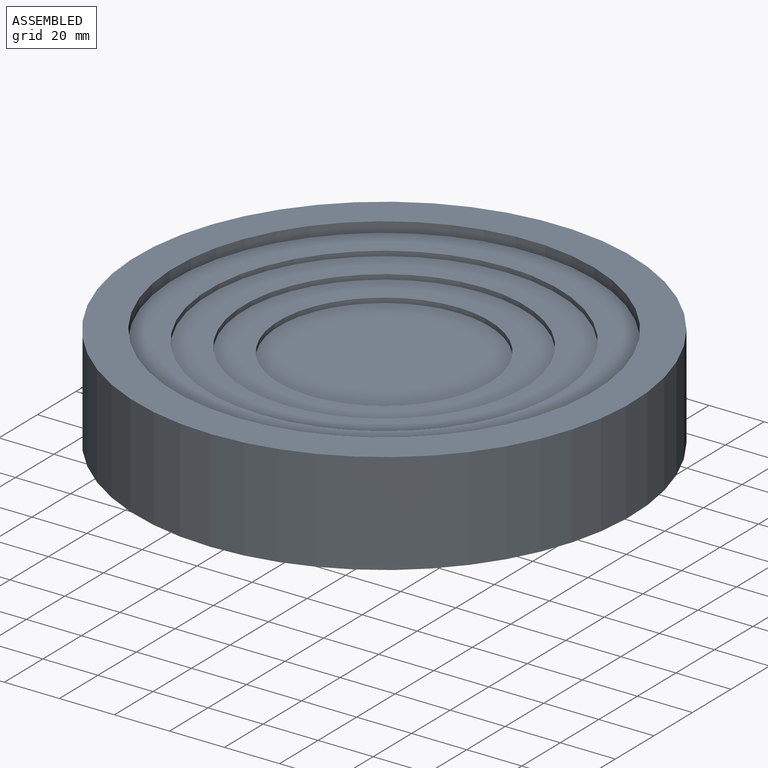
[diagram: assembled view]
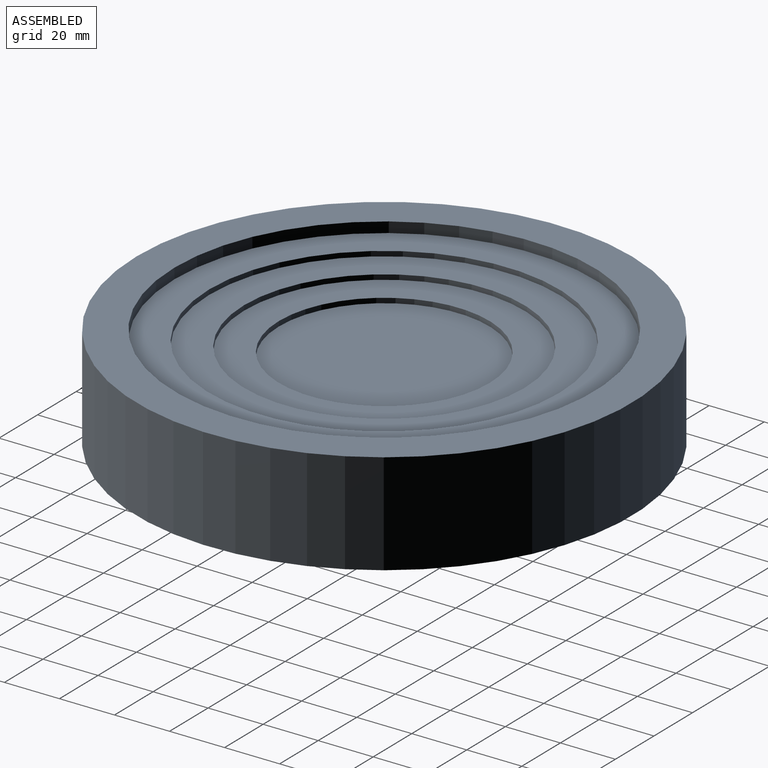
[diagram: assembled view, second angle]
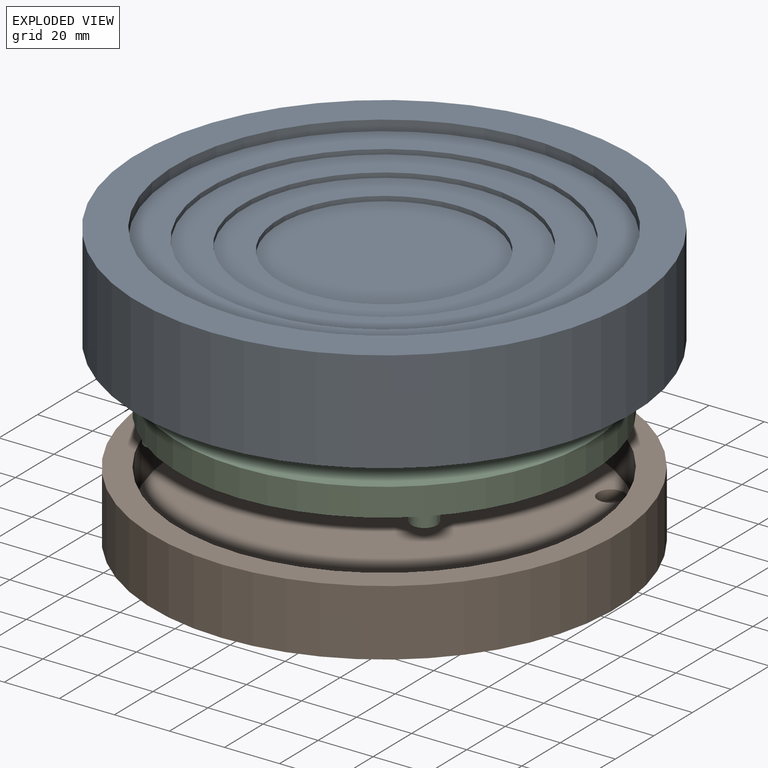
[diagram: exploded view]
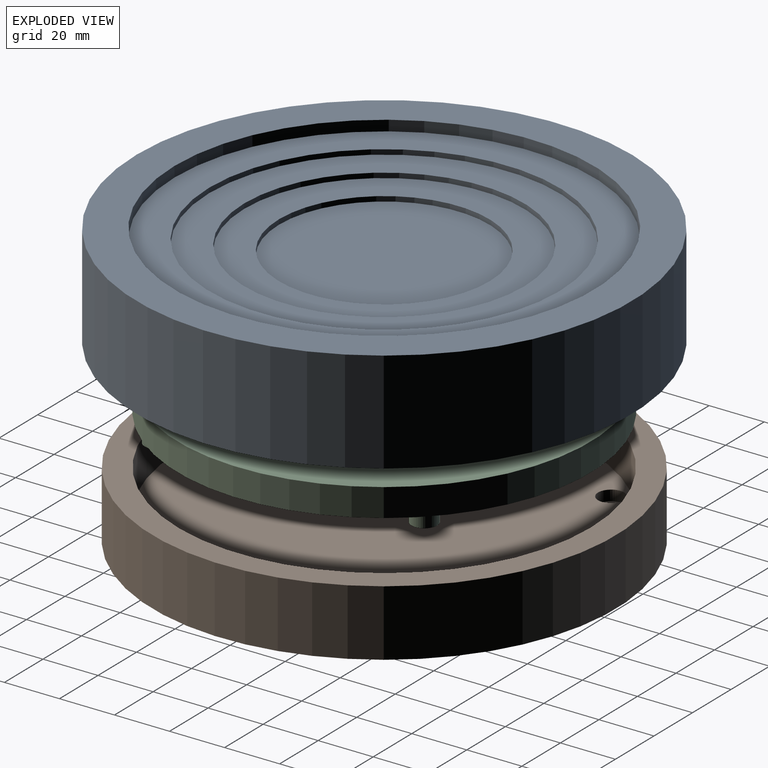
[diagram: exploded view, second angle]
ASSEMBLY  parts=3 mates=5
PART A: 25 faces, bbox 180x180x37.1 mm
  f0: plane 98.81x98.81mm, normal (0,0,-1), area 7667.5mm2, adj f1
  f1: cylinder r=49.4mm len=98.81mm, axis (0,0,1), area 2759.5mm2, adj f0,f2
  f2: plane 147.62x147.62mm, normal (0,0,-1), area 9163.7mm2, adj f1,f3,f11,f13,f15,f17
  f3: cylinder r=73.81mm len=147.62mm, axis (0,0,1), area 2945mm2, adj f2,f4
  f4: plane 170.82x170.82mm, normal (0,0,-1), area 5799.9mm2, adj f3,f5
  f5: cylinder r=85.41mm len=170.82mm, axis (0,0,1), area 12267.4mm2, adj f4,f6
  f6: plane 179.96x179.96mm, normal (0,0,-1), area 2519.1mm2, adj f5,f7
  f7: cylinder r=89.98mm len=179.96mm, axis (0,0,1), area 20965.7mm2, adj f6,f8
  f8: plane 179.96x179.96mm, normal (0,0,1), area 7193.8mm2, adj f7,f9
  f9: cylinder r=76.2mm len=152.4mm, axis (0,0,1), area 1824.1mm2, adj f8,f10
  f10: plane 152.4x152.4mm, normal (0,0,1), area 5523.1mm2, adj f9,f19
  f11: cylinder r=4.76mm len=9.53mm, axis (0,0,-1), area 114mm2, adj f2,f12
  f12: plane 9.53x9.53mm, normal (0,0,-1), area 71.3mm2, adj f11
  f13: cylinder r=4.76mm len=9.53mm, axis (0,0,-1), area 114mm2, adj f2,f14
  f14: plane 9.53x9.53mm, normal (0,0,-1), area 71.3mm2, adj f13
  f15: cylinder r=4.76mm len=9.53mm, axis (0,0,-1), area 114mm2, adj f2,f16
  f16: plane 9.53x9.53mm, normal (0,0,-1), area 71.3mm2, adj f15
  f17: cylinder r=4.76mm len=9.53mm, axis (0,0,-1), area 114mm2, adj f2,f18
  f18: plane 9.53x9.53mm, normal (0,0,-1), area 71.3mm2, adj f17
  f19: cylinder r=63.63mm len=127.25mm, axis (0,0,1), area 710.8mm2, adj f10,f20
  f20: plane 127.25x127.25mm, normal (0,0,1), area 4570.5mm2, adj f19,f21
  f21: cylinder r=50.93mm len=101.85mm, axis (0,0,1), area 568.9mm2, adj f20,f22
  f22: plane 101.85x101.85mm, normal (0,0,1), area 3557.1mm2, adj f21,f23
  f23: cylinder r=38.23mm len=76.45mm, axis (0,0,1), area 427.1mm2, adj f22,f24
  f24: plane 76.45x76.45mm, normal (0,0,1), area 4590.8mm2, adj f23
PART B: 15 faces, bbox 168.3x168.3x24.1 mm
  f0: plane 162.31x162.31mm, normal (0,0,-1), area 20689.9mm2, adj f1
  f1: cylinder r=81.15mm len=162.31mm, axis (0,0,1), area 1295.1mm2, adj f0,f2
  f2: plane 168.28x168.28mm, normal (0,0,-1), area 1549.8mm2, adj f1,f3
  f3: cylinder r=84.14mm len=168.28mm, axis (0,0,1), area 12756.4mm2, adj f2,f4
  f4: plane 168.28x168.28mm, normal (0,0,1), area 4601.2mm2, adj f3,f5
  f5: cylinder r=74.93mm len=149.86mm, axis (0,0,1), area 7175mm2, adj f4,f6
  f6: plane 149.86x149.86mm, normal (0,0,1), area 17353.5mm2, adj f5,f7,f9,f11,f13
  f7: cylinder r=4.76mm len=9.53mm, axis (0,0,1), area 114mm2, adj f6,f8
  f8: plane 9.53x9.53mm, normal (0,0,1), area 71.3mm2, adj f7
  f9: cylinder r=4.76mm len=9.53mm, axis (0,0,1), area 114mm2, adj f6,f10
  f10: plane 9.53x9.53mm, normal (0,0,1), area 71.3mm2, adj f9
  f11: cylinder r=4.76mm len=9.53mm, axis (0,0,1), area 114mm2, adj f6,f12
  f12: plane 9.53x9.53mm, normal (0,0,1), area 71.3mm2, adj f11
  f13: cylinder r=4.76mm len=9.53mm, axis (0,0,1), area 114mm2, adj f6,f14
  f14: plane 9.53x9.53mm, normal (0,0,1), area 71.3mm2, adj f13
PART C: 20 faces, bbox 150x150x19.6 mm
  f0: plane 150x150mm, normal (0,0,1), area 9703.7mm2, adj f2,f3,f4,f6,f8,f10
  f1: plane 150x150mm, normal (0,0,-1), area 9703.7mm2, adj f2,f3,f12,f14,f16,f18
  f2: cylinder r=75mm len=150mm, axis (0,0,-1), area 4787.8mm2, adj f0,f1
  f3: cylinder r=49.5mm len=99mm, axis (0,0,-1), area 3159.9mm2, adj f0,f1
  f4: cylinder r=4.64mm len=9.27mm, axis (0,0,-1), area 136.9mm2, adj f0,f5
  f5: plane 9.27x9.27mm, normal (0,0,1), area 67.5mm2, adj f4
  f6: cylinder r=4.64mm len=9.27mm, axis (0,0,-1), area 136.9mm2, adj f0,f7
  f7: plane 9.27x9.27mm, normal (0,0,1), area 67.5mm2, adj f6
  f8: cylinder r=4.64mm len=9.27mm, axis (0,0,-1), area 136.9mm2, adj f0,f9
  f9: plane 9.27x9.27mm, normal (0,0,1), area 67.5mm2, adj f8
  f10: cylinder r=4.64mm len=9.27mm, axis (0,0,-1), area 136.9mm2, adj f0,f11
  f11: plane 9.27x9.27mm, normal (0,0,1), area 67.5mm2, adj f10
  f12: cylinder r=4.64mm len=9.27mm, axis (0,0,1), area 136.9mm2, adj f1,f13
  f13: plane 9.27x9.27mm, normal (0,0,-1), area 67.5mm2, adj f12
  f14: cylinder r=4.64mm len=9.27mm, axis (0,0,1), area 136.9mm2, adj f1,f15
  f15: plane 9.27x9.27mm, normal (0,0,-1), area 67.5mm2, adj f14
  f16: cylinder r=4.64mm len=9.27mm, axis (0,0,1), area 136.9mm2, adj f1,f17
  f17: plane 9.27x9.27mm, normal (0,0,-1), area 67.5mm2, adj f16
  f18: cylinder r=4.64mm len=9.27mm, axis (0,0,1), area 136.9mm2, adj f1,f19
  f19: plane 9.27x9.27mm, normal (0,0,-1), area 67.5mm2, adj f18
PLACE A t=(0,0,22.48)mm
PLACE B t=(0,0,-12.06)mm
PLACE C t=(0,0,-0.63)mm
MATE fastened C.f2 <-> B.f1  axis (0,0,-1) through (0,0,4.45)mm
MATE cylindrical B.f7 <-> C.f18  axis (0,0,1) through (-48.49,48.49,-5.08)mm
MATE cylindrical A.f1 <-> B.f1  axis (0,0,1) through (0,0,0.64)mm
MATE planar C.f4 <-> A.f17  axis (0,0,1) through (-39.33,39.33,9.53)mm
MATE cylindrical C.f10 <-> A.f11  axis (0,0,1) through (-39.33,-39.33,14.22)mm
